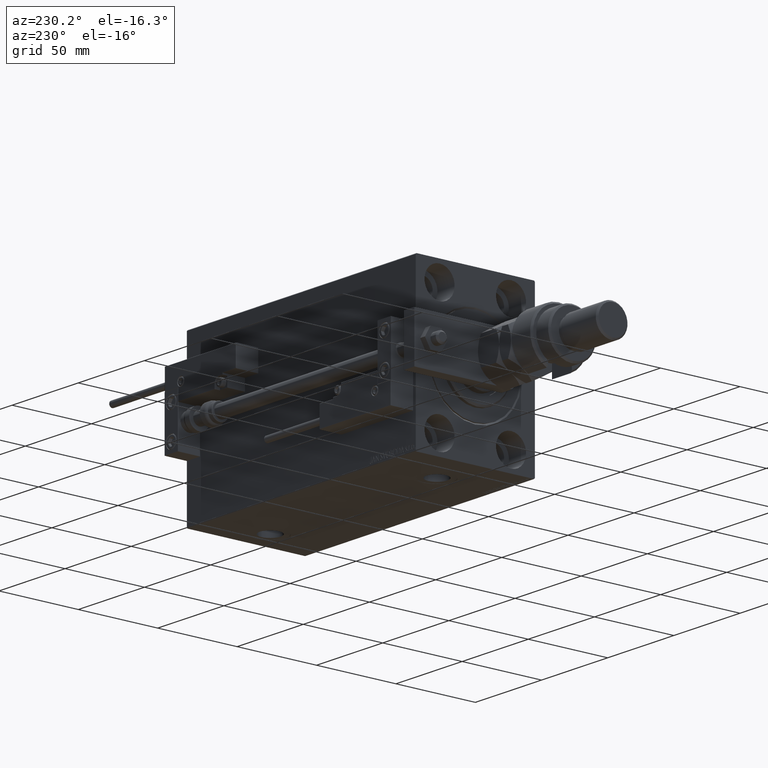
[diagram: clean part render]
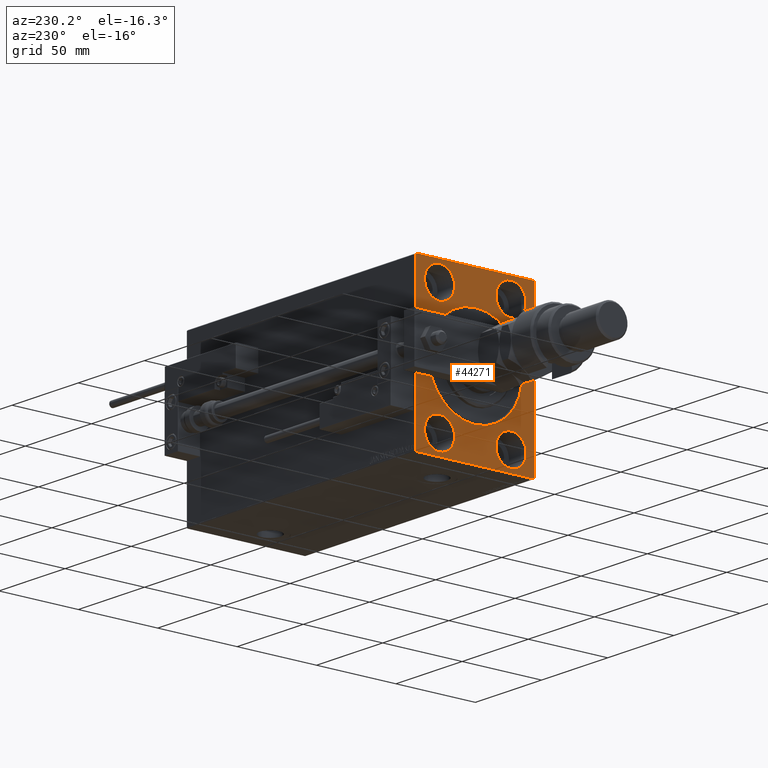
[diagram: same view with one face highlighted and labeled with its STEP entity id]
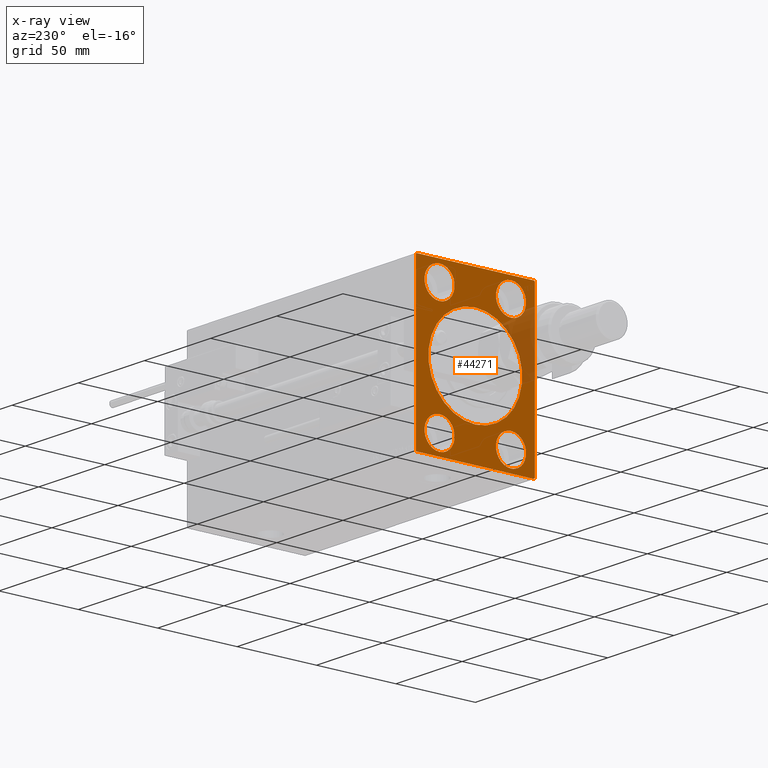
[diagram: x-ray of the same camera — body ghosted, the highlighted face saturated]
A machine part, auxiliary view. The second image highlights one B-rep face of the part: STEP entity #44271.
The next image is the same camera in x-ray: the body ghosted, the highlighted face saturated — about 12% of this face is hidden behind the body in this view.
In plain terms, the highlighted planar face has unit normal (1, 0, 0).
Its self-contained STEP definition (entity closure, byte-faithful):
#923 = ORIENTED_EDGE ( 'NONE', *, *, #46000, .F. ) ;
#947 = LINE ( 'NONE', #34040, #40772 ) ;
#1200 = ORIENTED_EDGE ( 'NONE', *, *, #14836, .T. ) ;
#1314 = CARTESIAN_POINT ( 'NONE',  ( 0.000000000000000000, 22.50000000000000355, 47.49999999999999289 ) ) ;
#2076 = DIRECTION ( 'NONE',  ( 0.000000000000000000, 0.000000000000000000, 1.000000000000000000 ) ) ;
#2315 = DIRECTION ( 'NONE',  ( 0.000000000000000000, 0.000000000000000000, 1.000000000000000000 ) ) ;
#2385 = DIRECTION ( 'NONE',  ( 0.000000000000000000, 0.000000000000000000, 1.000000000000000000 ) ) ;
#2546 = CIRCLE ( 'NONE', #42136, 9.500000000000001776 ) ;
#2598 = CARTESIAN_POINT ( 'NONE',  ( 0.000000000000000000, 0.000000000000000000, 0.000000000000000000 ) ) ;
#2650 = ORIENTED_EDGE ( 'NONE', *, *, #20235, .T. ) ;
#2863 = EDGE_CURVE ( 'NONE', #3331, #18269, #53931, .T. ) ;
#2995 = CARTESIAN_POINT ( 'NONE',  ( 0.000000000000000000, 37.50000000000000711, -49.50000000000000000 ) ) ;
#3331 = VERTEX_POINT ( 'NONE', #19700 ) ;
#3617 = ORIENTED_EDGE ( 'NONE', *, *, #5651, .F. ) ;
#3778 = CARTESIAN_POINT ( 'NONE',  ( 0.000000000000000000, 0.000000000000000000, 29.50000000000002842 ) ) ;
#4519 = EDGE_CURVE ( 'NONE', #44815, #18148, #947, .T. ) ;
#4627 = VECTOR ( 'NONE', #51680, 1000.000000000000000 ) ;
#4651 = DIRECTION ( 'NONE',  ( 0.000000000000000000, 0.000000000000000000, 1.000000000000000000 ) ) ;
#5651 = EDGE_CURVE ( 'NONE', #9358, #12608, #51122, .T. ) ;
#6130 = LINE ( 'NONE', #22926, #26850 ) ;
#6187 = CARTESIAN_POINT ( 'NONE',  ( 0.000000000000000000, 22.49999999999999645, -37.99999999999999289 ) ) ;
#6426 = DIRECTION ( 'NONE',  ( 0.000000000000000000, 0.000000000000000000, -1.000000000000000000 ) ) ;
#6456 = VERTEX_POINT ( 'NONE', #3778 ) ;
#6788 = DIRECTION ( 'NONE',  ( -1.000000000000000000, 0.000000000000000000, 0.000000000000000000 ) ) ;
#7080 = VERTEX_POINT ( 'NONE', #41719 ) ;
#7375 = CIRCLE ( 'NONE', #22353, 9.500000000000001776 ) ;
#8682 = LINE ( 'NONE', #17224, #45515 ) ;
#8713 = VECTOR ( 'NONE', #37078, 1000.000000000000000 ) ;
#8828 = CARTESIAN_POINT ( 'NONE',  ( 0.000000000000000000, -37.00000000000000711, -50.00000000000000711 ) ) ;
#9126 = CARTESIAN_POINT ( 'NONE',  ( 0.000000000000000000, -36.99999999999997868, 49.99999999999999289 ) ) ;
#9358 = VERTEX_POINT ( 'NONE', #28742 ) ;
#10321 = DIRECTION ( 'NONE',  ( 0.000000000000000000, 0.000000000000000000, 1.000000000000000000 ) ) ;
#10590 = DIRECTION ( 'NONE',  ( 1.000000000000000000, 0.000000000000000000, 0.000000000000000000 ) ) ;
#10762 = AXIS2_PLACEMENT_3D ( 'NONE', #12713, #33666, #29539 ) ;
#11738 = ORIENTED_EDGE ( 'NONE', *, *, #47371, .F. ) ;
#11822 = AXIS2_PLACEMENT_3D ( 'NONE', #42379, #30274, #4651 ) ;
#11886 = CARTESIAN_POINT ( 'NONE',  ( 0.000000000000000000, 22.50000000000000355, 28.49999999999998934 ) ) ;
#12489 = ORIENTED_EDGE ( 'NONE', *, *, #34017, .T. ) ;
#12493 = ORIENTED_EDGE ( 'NONE', *, *, #29952, .F. ) ;
#12552 = EDGE_LOOP ( 'NONE', ( #14100, #923 ) ) ;
#12608 = VERTEX_POINT ( 'NONE', #9126 ) ;
#12713 = CARTESIAN_POINT ( 'NONE',  ( 0.000000000000000000, -22.50000000000000711, -37.99999999999999289 ) ) ;
#12804 = CIRCLE ( 'NONE', #49743, 9.500000000000001776 ) ;
#13364 = FACE_BOUND ( 'NONE', #52467, .T. ) ;
#13505 = CARTESIAN_POINT ( 'NONE',  ( 0.000000000000000000, -37.50000000000000711, 49.49999999999996447 ) ) ;
#13531 = EDGE_CURVE ( 'NONE', #25816, #42964, #43433, .T. ) ;
#14100 = ORIENTED_EDGE ( 'NONE', *, *, #44329, .F. ) ;
#14176 = ORIENTED_EDGE ( 'NONE', *, *, #22057, .F. ) ;
#14411 = EDGE_CURVE ( 'NONE', #52248, #53916, #50721, .T. ) ;
#14730 = FACE_OUTER_BOUND ( 'NONE', #37281, .T. ) ;
#14836 = EDGE_CURVE ( 'NONE', #31772, #6456, #48066, .T. ) ;
#15250 = ORIENTED_EDGE ( 'NONE', *, *, #19084, .F. ) ;
#15508 = CARTESIAN_POINT ( 'NONE',  ( 0.000000000000000000, -37.50000000000000711, 49.99999999999999289 ) ) ;
#15540 = CARTESIAN_POINT ( 'NONE',  ( 0.000000000000000000, -22.49999999999999645, 37.99999999999999289 ) ) ;
#15578 = CARTESIAN_POINT ( 'NONE',  ( 0.000000000000000000, -22.50000000000000711, -37.99999999999999289 ) ) ;
#17224 = CARTESIAN_POINT ( 'NONE',  ( 0.000000000000000000, -37.50000000000000711, -50.00000000000000711 ) ) ;
#17716 = CARTESIAN_POINT ( 'NONE',  ( 0.000000000000000000, 3.612708057484695548E-15, -29.50000000000002842 ) ) ;
#18148 = VERTEX_POINT ( 'NONE', #25653 ) ;
#18269 = VERTEX_POINT ( 'NONE', #50883 ) ;
#18583 = DIRECTION ( 'NONE',  ( -1.000000000000000000, 0.000000000000000000, 0.000000000000000000 ) ) ;
#18894 = DIRECTION ( 'NONE',  ( 0.000000000000000000, -0.7071067811865474617, -0.7071067811865474617 ) ) ;
#18903 = DIRECTION ( 'NONE',  ( -1.000000000000000000, 0.000000000000000000, 0.000000000000000000 ) ) ;
#19084 = EDGE_CURVE ( 'NONE', #44815, #42964, #8682, .T. ) ;
#19428 = DIRECTION ( 'NONE',  ( -1.000000000000000000, 0.000000000000000000, 0.000000000000000000 ) ) ;
#19615 = DIRECTION ( 'NONE',  ( -0.000000000000000000, 0.7071067811865425767, -0.7071067811865525687 ) ) ;
#19700 = CARTESIAN_POINT ( 'NONE',  ( 0.000000000000000000, -22.50000000000000711, -28.49999999999998934 ) ) ;
#19976 = DIRECTION ( 'NONE',  ( 0.000000000000000000, 0.000000000000000000, 1.000000000000000000 ) ) ;
#20235 = EDGE_CURVE ( 'NONE', #9358, #7080, #6130, .T. ) ;
#21045 = ORIENTED_EDGE ( 'NONE', *, *, #13531, .T. ) ;
#21566 = EDGE_CURVE ( 'NONE', #46365, #39193, #25119, .T. ) ;
#21908 = FACE_BOUND ( 'NONE', #12552, .T. ) ;
#22057 = EDGE_CURVE ( 'NONE', #39193, #46365, #12804, .T. ) ;
#22190 = EDGE_LOOP ( 'NONE', ( #14176, #27447 ) ) ;
#22353 = AXIS2_PLACEMENT_3D ( 'NONE', #6187, #18583, #10321 ) ;
#22468 = VERTEX_POINT ( 'NONE', #13505 ) ;
#22575 = CARTESIAN_POINT ( 'NONE',  ( 0.000000000000000000, 22.49999999999999645, -47.49999999999999289 ) ) ;
#22926 = CARTESIAN_POINT ( 'NONE',  ( 0.000000000000000000, 36.99999999999999289, 50.00000000000000711 ) ) ;
#22951 = VECTOR ( 'NONE', #40988, 1000.000000000000114 ) ;
#23646 = CARTESIAN_POINT ( 'NONE',  ( 0.000000000000000000, -37.50000000000000711, 49.49999999999996447 ) ) ;
#23846 = CARTESIAN_POINT ( 'NONE',  ( 0.000000000000000000, 22.49999999999999645, -28.49999999999998934 ) ) ;
#25119 = CIRCLE ( 'NONE', #26888, 9.500000000000001776 ) ;
#25293 = VERTEX_POINT ( 'NONE', #23846 ) ;
#25492 = DIRECTION ( 'NONE',  ( 0.000000000000000000, 1.000000000000000000, 9.251858538542970348E-17 ) ) ;
#25653 = CARTESIAN_POINT ( 'NONE',  ( 0.000000000000000000, -37.50000000000000711, -49.50000000000000711 ) ) ;
#25816 = VERTEX_POINT ( 'NONE', #2995 ) ;
#26309 = FACE_BOUND ( 'NONE', #22190, .T. ) ;
#26850 = VECTOR ( 'NONE', #19615, 999.9999999999998863 ) ;
#26888 = AXIS2_PLACEMENT_3D ( 'NONE', #31598, #39047, #2385 ) ;
#27126 = DIRECTION ( 'NONE',  ( 0.000000000000000000, 0.000000000000000000, -1.000000000000000000 ) ) ;
#27227 = LINE ( 'NONE', #23646, #22951 ) ;
#27360 = LINE ( 'NONE', #15508, #51961 ) ;
#27447 = ORIENTED_EDGE ( 'NONE', *, *, #21566, .F. ) ;
#28742 = CARTESIAN_POINT ( 'NONE',  ( 0.000000000000000000, 36.99999999999999289, 50.00000000000000711 ) ) ;
#29539 = DIRECTION ( 'NONE',  ( 0.000000000000000000, 0.000000000000000000, 1.000000000000000000 ) ) ;
#29952 = EDGE_CURVE ( 'NONE', #53916, #52248, #2546, .T. ) ;
#30179 = DIRECTION ( 'NONE',  ( -0.000000000000000000, -0.7071067811865474617, 0.7071067811865474617 ) ) ;
#30274 = DIRECTION ( 'NONE',  ( -1.000000000000000000, 0.000000000000000000, 0.000000000000000000 ) ) ;
#30880 = AXIS2_PLACEMENT_3D ( 'NONE', #15578, #6788, #19976 ) ;
#31536 = ORIENTED_EDGE ( 'NONE', *, *, #33004, .F. ) ;
#31581 = CARTESIAN_POINT ( 'NONE',  ( 0.000000000000000000, 22.50000000000000355, 37.99999999999999289 ) ) ;
#31598 = CARTESIAN_POINT ( 'NONE',  ( 0.000000000000000000, -22.49999999999999645, 37.99999999999999289 ) ) ;
#31772 = VERTEX_POINT ( 'NONE', #17716 ) ;
#32243 = AXIS2_PLACEMENT_3D ( 'NONE', #51378, #51655, #39240 ) ;
#32352 = DIRECTION ( 'NONE',  ( -1.000000000000000000, 0.000000000000000000, 0.000000000000000000 ) ) ;
#32360 = PLANE ( 'NONE',  #46953 ) ;
#33004 = EDGE_CURVE ( 'NONE', #25816, #7080, #54174, .T. ) ;
#33666 = DIRECTION ( 'NONE',  ( -1.000000000000000000, 0.000000000000000000, 0.000000000000000000 ) ) ;
#34017 = EDGE_CURVE ( 'NONE', #6456, #31772, #38620, .T. ) ;
#34029 = ORIENTED_EDGE ( 'NONE', *, *, #4519, .T. ) ;
#34040 = CARTESIAN_POINT ( 'NONE',  ( 0.000000000000000000, -37.00000000000000711, -50.00000000000000711 ) ) ;
#34556 = EDGE_LOOP ( 'NONE', ( #50019, #39173 ) ) ;
#34845 = CARTESIAN_POINT ( 'NONE',  ( 0.000000000000000000, -22.49999999999999645, 47.49999999999999289 ) ) ;
#34861 = FACE_BOUND ( 'NONE', #46370, .T. ) ;
#35583 = CIRCLE ( 'NONE', #11822, 9.500000000000001776 ) ;
#35733 = DIRECTION ( 'NONE',  ( 0.000000000000000000, 0.000000000000000000, -1.000000000000000000 ) ) ;
#36549 = CARTESIAN_POINT ( 'NONE',  ( 0.000000000000000000, 0.000000000000000000, 0.000000000000000000 ) ) ;
#37078 = DIRECTION ( 'NONE',  ( 0.000000000000000000, -1.387778780781445676E-16, 1.000000000000000000 ) ) ;
#37281 = EDGE_LOOP ( 'NONE', ( #11738, #50851, #3617, #2650, #31536, #21045, #15250, #34029 ) ) ;
#38620 = CIRCLE ( 'NONE', #42177, 29.50000000000002842 ) ;
#39047 = DIRECTION ( 'NONE',  ( -1.000000000000000000, 0.000000000000000000, 0.000000000000000000 ) ) ;
#39173 = ORIENTED_EDGE ( 'NONE', *, *, #48074, .F. ) ;
#39193 = VERTEX_POINT ( 'NONE', #34845 ) ;
#39240 = DIRECTION ( 'NONE',  ( 0.000000000000000000, 0.000000000000000000, -1.000000000000000000 ) ) ;
#40772 = VECTOR ( 'NONE', #30179, 1000.000000000000114 ) ;
#40988 = DIRECTION ( 'NONE',  ( -0.000000000000000000, 0.7071067811865474617, 0.7071067811865474617 ) ) ;
#41142 = VERTEX_POINT ( 'NONE', #22575 ) ;
#41719 = CARTESIAN_POINT ( 'NONE',  ( 0.000000000000000000, 37.49999999999999289, 49.50000000000000000 ) ) ;
#41724 = ORIENTED_EDGE ( 'NONE', *, *, #14411, .F. ) ;
#42136 = AXIS2_PLACEMENT_3D ( 'NONE', #52782, #19428, #2076 ) ;
#42177 = AXIS2_PLACEMENT_3D ( 'NONE', #36549, #49217, #35733 ) ;
#42379 = CARTESIAN_POINT ( 'NONE',  ( 0.000000000000000000, 22.49999999999999645, -37.99999999999999289 ) ) ;
#42964 = VERTEX_POINT ( 'NONE', #53304 ) ;
#43433 = LINE ( 'NONE', #44242, #48901 ) ;
#44084 = CIRCLE ( 'NONE', #30880, 9.500000000000001776 ) ;
#44242 = CARTESIAN_POINT ( 'NONE',  ( 0.000000000000000000, 37.50000000000000711, -49.50000000000000000 ) ) ;
#44271 = ADVANCED_FACE ( 'NONE', ( #13364, #21908, #26309, #34861, #48051, #14730 ), #32360, .F. ) ;
#44329 = EDGE_CURVE ( 'NONE', #25293, #41142, #7375, .T. ) ;
#44588 = AXIS2_PLACEMENT_3D ( 'NONE', #31581, #18903, #48370 ) ;
#44815 = VERTEX_POINT ( 'NONE', #8828 ) ;
#45515 = VECTOR ( 'NONE', #25492, 1000.000000000000000 ) ;
#46000 = EDGE_CURVE ( 'NONE', #41142, #25293, #35583, .T. ) ;
#46365 = VERTEX_POINT ( 'NONE', #50876 ) ;
#46370 = EDGE_LOOP ( 'NONE', ( #41724, #12493 ) ) ;
#46953 = AXIS2_PLACEMENT_3D ( 'NONE', #2598, #10590, #27126 ) ;
#47371 = EDGE_CURVE ( 'NONE', #22468, #18148, #27360, .T. ) ;
#47675 = EDGE_CURVE ( 'NONE', #22468, #12608, #27227, .T. ) ;
#48051 = FACE_BOUND ( 'NONE', #34556, .T. ) ;
#48066 = CIRCLE ( 'NONE', #32243, 29.50000000000002842 ) ;
#48074 = EDGE_CURVE ( 'NONE', #18269, #3331, #44084, .T. ) ;
#48370 = DIRECTION ( 'NONE',  ( 0.000000000000000000, 0.000000000000000000, 1.000000000000000000 ) ) ;
#48901 = VECTOR ( 'NONE', #18894, 1000.000000000000114 ) ;
#49217 = DIRECTION ( 'NONE',  ( 1.000000000000000000, 0.000000000000000000, 0.000000000000000000 ) ) ;
#49743 = AXIS2_PLACEMENT_3D ( 'NONE', #15540, #32352, #2315 ) ;
#50019 = ORIENTED_EDGE ( 'NONE', *, *, #2863, .F. ) ;
#50721 = CIRCLE ( 'NONE', #44588, 9.500000000000001776 ) ;
#50851 = ORIENTED_EDGE ( 'NONE', *, *, #47675, .T. ) ;
#50876 = CARTESIAN_POINT ( 'NONE',  ( 0.000000000000000000, -22.49999999999999645, 28.49999999999998934 ) ) ;
#50883 = CARTESIAN_POINT ( 'NONE',  ( 0.000000000000000000, -22.50000000000000711, -47.49999999999999289 ) ) ;
#51122 = LINE ( 'NONE', #51943, #4627 ) ;
#51378 = CARTESIAN_POINT ( 'NONE',  ( 0.000000000000000000, 0.000000000000000000, 0.000000000000000000 ) ) ;
#51655 = DIRECTION ( 'NONE',  ( 1.000000000000000000, 0.000000000000000000, 0.000000000000000000 ) ) ;
#51680 = DIRECTION ( 'NONE',  ( 0.000000000000000000, -1.000000000000000000, -1.850371707708594316E-16 ) ) ;
#51943 = CARTESIAN_POINT ( 'NONE',  ( 0.000000000000000000, 37.49999999999999289, 50.00000000000000711 ) ) ;
#51961 = VECTOR ( 'NONE', #6426, 1000.000000000000000 ) ;
#52248 = VERTEX_POINT ( 'NONE', #1314 ) ;
#52467 = EDGE_LOOP ( 'NONE', ( #12489, #1200 ) ) ;
#52782 = CARTESIAN_POINT ( 'NONE',  ( 0.000000000000000000, 22.50000000000000355, 37.99999999999999289 ) ) ;
#53304 = CARTESIAN_POINT ( 'NONE',  ( 0.000000000000000000, 37.00000000000000711, -50.00000000000000000 ) ) ;
#53916 = VERTEX_POINT ( 'NONE', #11886 ) ;
#53931 = CIRCLE ( 'NONE', #10762, 9.500000000000001776 ) ;
#54174 = LINE ( 'NONE', #54447, #8713 ) ;
#54447 = CARTESIAN_POINT ( 'NONE',  ( 0.000000000000000000, 37.50000000000000711, -50.00000000000000000 ) ) ;